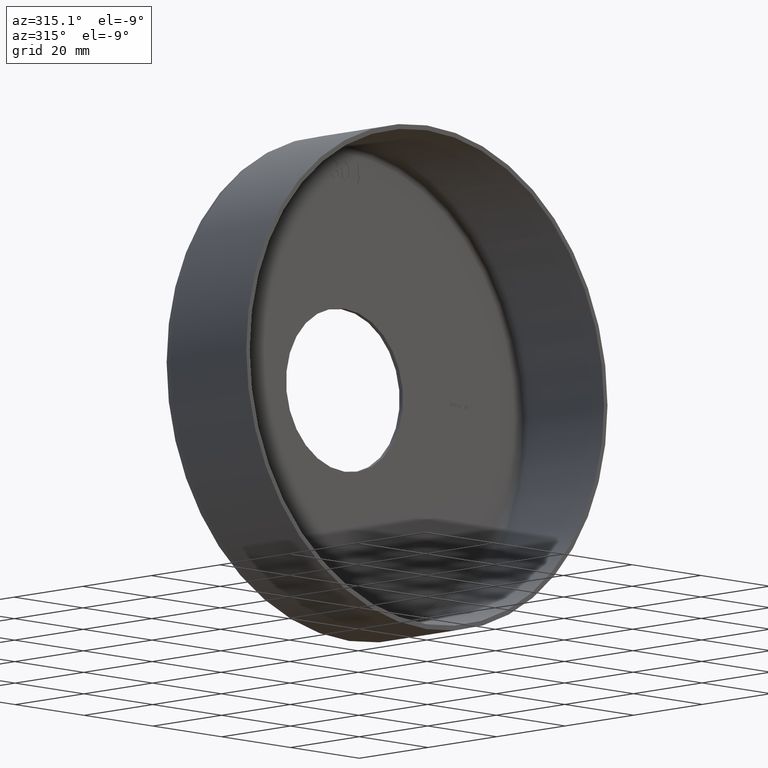
[diagram: clean part render]
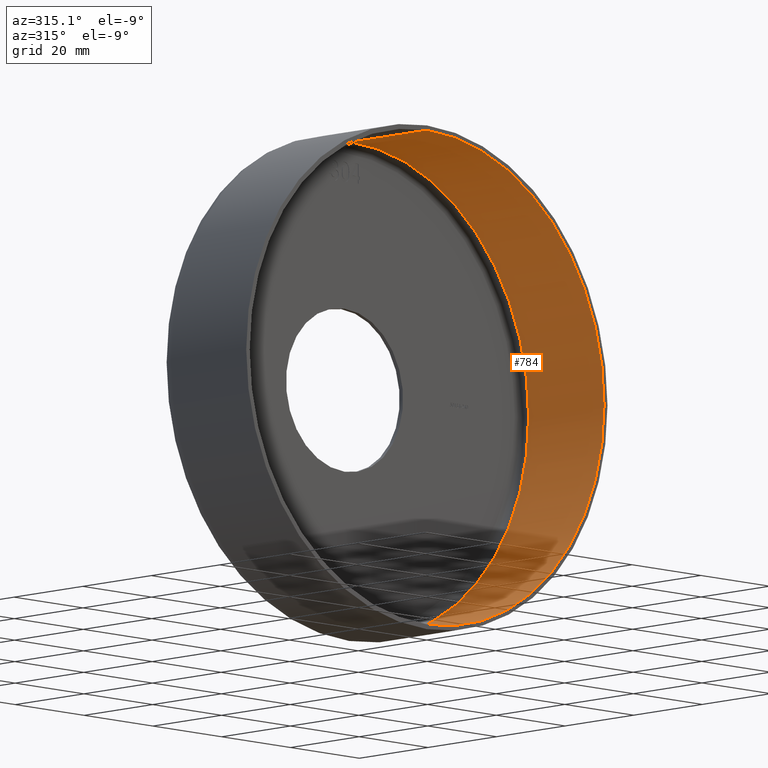
[diagram: same view with one face highlighted and labeled with its STEP entity id]
A machine part, auxiliary view. The second image highlights one B-rep face of the part: STEP entity #784.
In plain terms, the highlighted cylindrical surface (partial cylindrical patch) has radius 51.5 mm, axis along (-0, -1, -0).
Its self-contained STEP definition (entity closure, byte-faithful):
#92 = CARTESIAN_POINT ( 'NONE',  ( 0.000000000000000000, -1.224646799147353207E-16, -51.50000000000000711 ) ) ;
#149 = VECTOR ( 'NONE', #10931, 1000.000000000000000 ) ;
#784 = ADVANCED_FACE ( 'NONE', ( #9141 ), #14195, .F. ) ;
#1189 = EDGE_CURVE ( 'NONE', #10697, #7500, #2438, .T. ) ;
#1738 = CARTESIAN_POINT ( 'NONE',  ( 0.000000000000000000, 0.000000000000000000, -51.50000000000000711 ) ) ;
#2438 = CIRCLE ( 'NONE', #14033, 51.50000000000000711 ) ;
#3047 = ORIENTED_EDGE ( 'NONE', *, *, #14118, .T. ) ;
#3130 = EDGE_CURVE ( 'NONE', #7430, #7500, #13213, .T. ) ;
#3947 = CIRCLE ( 'NONE', #4271, 51.50000000000000711 ) ;
#4141 = DIRECTION ( 'NONE',  ( -0.000000000000000000, -1.000000000000000000, -0.000000000000000000 ) ) ;
#4271 = AXIS2_PLACEMENT_3D ( 'NONE', #5624, #4727, #15423 ) ;
#4727 = DIRECTION ( 'NONE',  ( -0.000000000000000000, -1.000000000000000000, -0.000000000000000000 ) ) ;
#5624 = CARTESIAN_POINT ( 'NONE',  ( 0.000000000000000000, 22.00000000000000355, 0.000000000000000000 ) ) ;
#6238 = CARTESIAN_POINT ( 'NONE',  ( 6.306931015608869596E-15, -1.224646799147353207E-16, 51.50000000000000711 ) ) ;
#6544 = CARTESIAN_POINT ( 'NONE',  ( 0.000000000000000000, -1.224646799147353207E-16, 0.000000000000000000 ) ) ;
#6961 = VECTOR ( 'NONE', #4141, 1000.000000000000000 ) ;
#6973 = ORIENTED_EDGE ( 'NONE', *, *, #9347, .F. ) ;
#7430 = VERTEX_POINT ( 'NONE', #11869 ) ;
#7500 = VERTEX_POINT ( 'NONE', #6238 ) ;
#8788 = DIRECTION ( 'NONE',  ( -0.000000000000000000, -1.000000000000000000, -0.000000000000000000 ) ) ;
#9141 = FACE_OUTER_BOUND ( 'NONE', #14829, .T. ) ;
#9347 = EDGE_CURVE ( 'NONE', #14006, #7430, #3947, .T. ) ;
#10101 = CARTESIAN_POINT ( 'NONE',  ( 0.000000000000000000, 0.000000000000000000, 0.000000000000000000 ) ) ;
#10313 = LINE ( 'NONE', #1738, #6961 ) ;
#10668 = ORIENTED_EDGE ( 'NONE', *, *, #1189, .T. ) ;
#10697 = VERTEX_POINT ( 'NONE', #92 ) ;
#10931 = DIRECTION ( 'NONE',  ( -0.000000000000000000, -1.000000000000000000, -0.000000000000000000 ) ) ;
#11219 = DIRECTION ( 'NONE',  ( -0.000000000000000000, -1.000000000000000000, -0.000000000000000000 ) ) ;
#11869 = CARTESIAN_POINT ( 'NONE',  ( 6.306931015608869596E-15, 22.00000000000000355, 51.50000000000000711 ) ) ;
#12440 = DIRECTION ( 'NONE',  ( 0.000000000000000000, 0.000000000000000000, -1.000000000000000000 ) ) ;
#12648 = AXIS2_PLACEMENT_3D ( 'NONE', #10101, #8788, #14912 ) ;
#13213 = LINE ( 'NONE', #14463, #149 ) ;
#13418 = CARTESIAN_POINT ( 'NONE',  ( 0.000000000000000000, 22.00000000000000355, -51.50000000000000711 ) ) ;
#14006 = VERTEX_POINT ( 'NONE', #13418 ) ;
#14033 = AXIS2_PLACEMENT_3D ( 'NONE', #6544, #11219, #12440 ) ;
#14118 = EDGE_CURVE ( 'NONE', #14006, #10697, #10313, .T. ) ;
#14195 = CYLINDRICAL_SURFACE ( 'NONE', #12648, 51.50000000000000711 ) ;
#14463 = CARTESIAN_POINT ( 'NONE',  ( 6.306931015608869596E-15, 0.000000000000000000, 51.50000000000000711 ) ) ;
#14829 = EDGE_LOOP ( 'NONE', ( #15305, #6973, #3047, #10668 ) ) ;
#14912 = DIRECTION ( 'NONE',  ( 0.000000000000000000, 0.000000000000000000, -1.000000000000000000 ) ) ;
#15305 = ORIENTED_EDGE ( 'NONE', *, *, #3130, .F. ) ;
#15423 = DIRECTION ( 'NONE',  ( 0.000000000000000000, 0.000000000000000000, -1.000000000000000000 ) ) ;